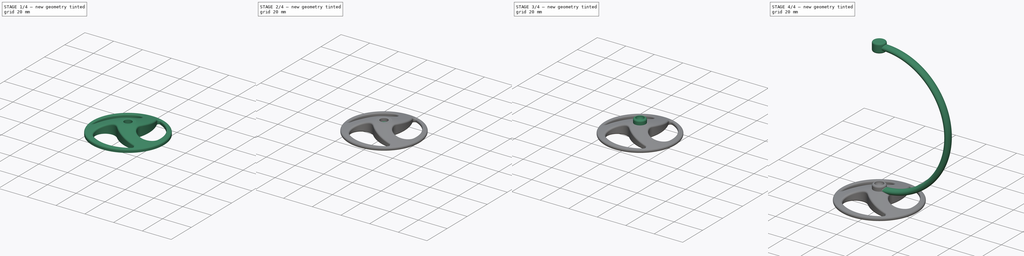
[diagram: build sequence overview — one tinted view per stage of 4, left to right]
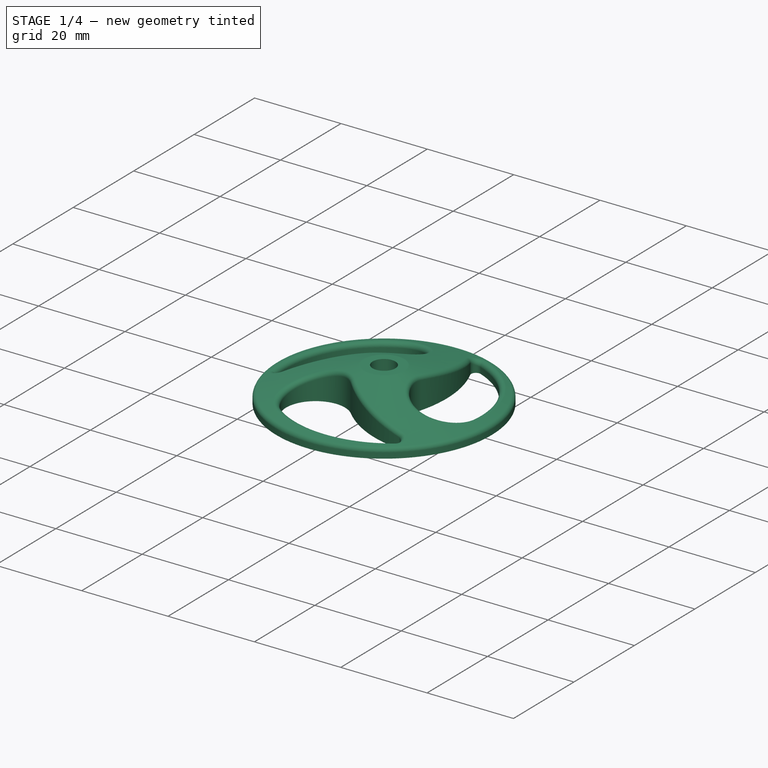
[diagram: stage 1 of 4 — iso view after this stage's code; geometry added in this stage tinted green]
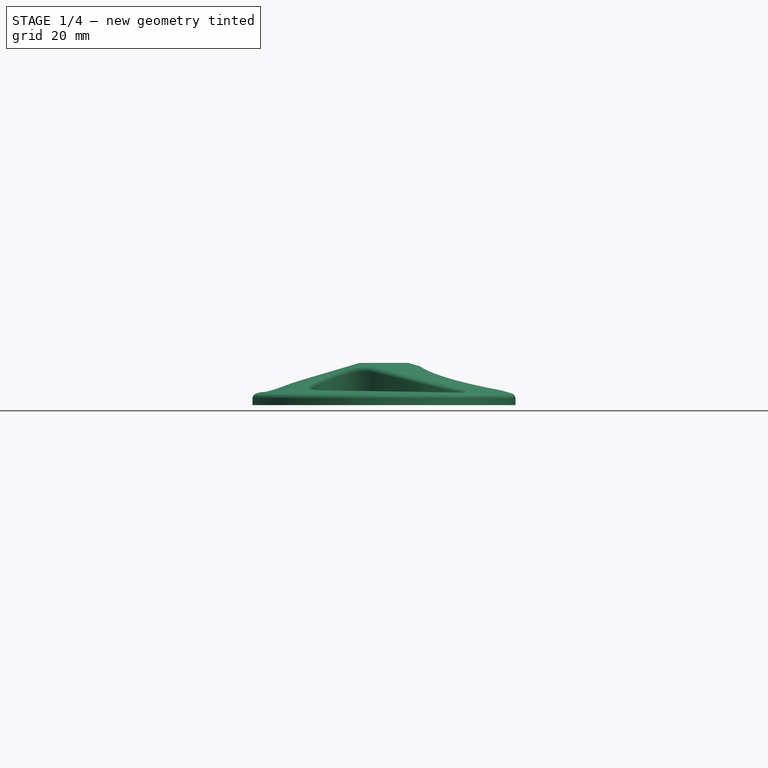
[diagram: stage 1 of 4 — front view after this stage's code; geometry added in this stage tinted green]
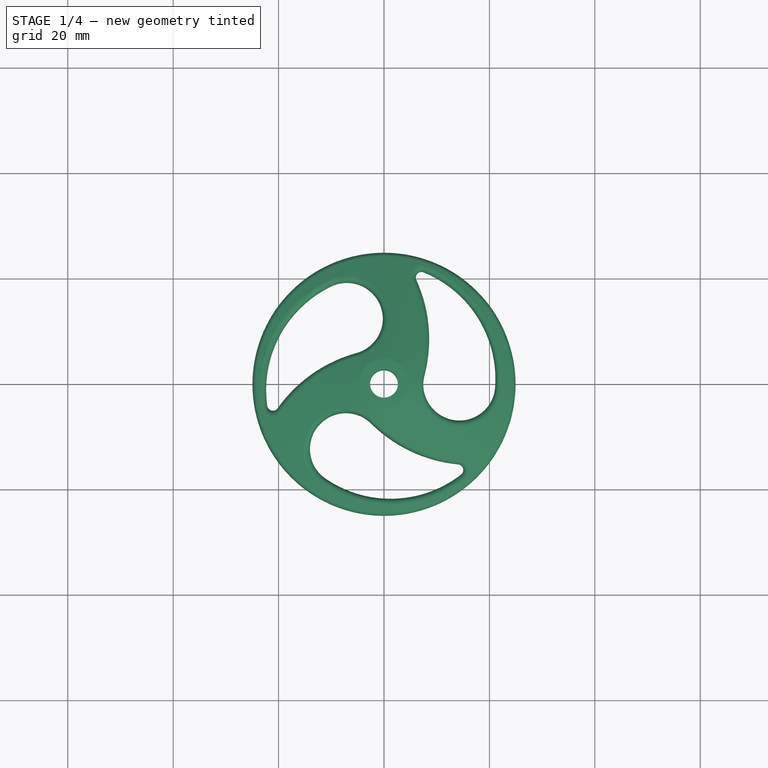
[diagram: stage 1 of 4 — top view after this stage's code; geometry added in this stage tinted green]
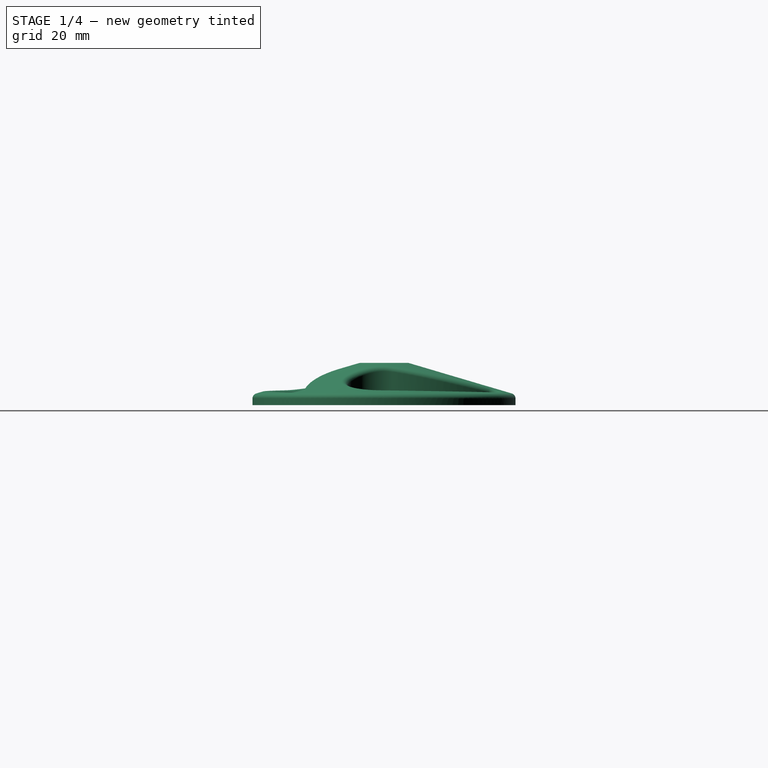
[diagram: stage 1 of 4 — right view after this stage's code; geometry added in this stage tinted green]
FCSTD DOCUMENT  (FreeCAD 0.18R4 (GitTag))
Label: stand-elegant
License: All rights reserved
LicenseURL: http://en.wikipedia.org/wiki/All_rights_reserved
objects: Sketcher::SketchObject×7, PartDesign::Fillet×6, PartDesign::Body×5, PartDesign::Revolution×4, PartDesign::AdditivePipe×1, Part::MultiFuse×1, PartDesign::Pocket×1, PartDesign::PolarPattern×1, App::MeasureDistance×1
note: 32 computed .brp shape members not serialized (recipe doc carries the construction recipe); baked Part::Feature solids carry a one-line shape summary decoded from their .brp

FEATURE [PartDesign::Body] Body  label="top socket"
  Group = -> [Sketch,Revolution,Fillet001,Fillet002]
  Origin = -> Origin
  Placement = pos=(0,0,84.5) rot=(0,1,0;3.14159rad)
  Tip = -> Fillet002
FEATURE [Sketcher::SketchObject] Sketch004
  MapMode = 5
  Placement = pos=(0,0,0) rot=(1,0,0;1.5708rad)
  Support = -> [XZ_Plane003]
  sketch-geometry (5):
    g0: LineSegment StartX=2.65 StartY=-8 StartZ=0 EndX=2.65 EndY=0 EndZ=0
    g1: LineSegment StartX=2.65 StartY=-8 StartZ=0 EndX=24.95 EndY=-8 EndZ=0
    g2: LineSegment StartX=24.95 StartY=-8 StartZ=0 EndX=24.95 EndY=-6 EndZ=0
    g3: LineSegment StartX=24.95 StartY=-6 StartZ=0 EndX=4.65 EndY=0 EndZ=0
    g4: LineSegment StartX=2.65 StartY=0 StartZ=0 EndX=4.65 EndY=0 EndZ=0
  constraints (15):
    c: Vertical(g0)
    c: Coincident(g1,g2)
    c: Coincident(g2,g3)
    c: PointOnObject(g0,g-1)
    c: Horizontal(g1)
    c: Vertical(g2)
    c: DistanceY(g2,g2) = 2
    c: Coincident(g3,g4)
    c: Coincident(g0,g4)
    c: Horizontal(g4)
    c: DistanceX(g4,g4) = 2
    c: DistanceX(g1,g1) = 22.3
    c: DistanceY(g0,g0) = 8
    c: Coincident(g0,g1)
    c: DistanceX(g-1,g0) = 2.65
FEATURE [PartDesign::Revolution] Revolution002
  Angle = 360
  Axis = (0,-2e-16,1)
  Base = (0,0,0)
  Placement = pos=(0,0,0) rot=(1,0,0;1.5708rad)
  Profile = -> Sketch004
  ReferenceAxis = -> Sketch004 [V_Axis]
  Reversed = true
FEATURE [PartDesign::Pocket] Pocket
  BaseFeature = -> Revolution002
  Length = 5
  Length2 = 100
  Placement = pos=(0,0,0) rot=(1,0,0;1.5708rad)
  Profile = -> Sketch005
  Type = 1
FEATURE [PartDesign::PolarPattern] PolarPattern
  Angle = 360
  Axis = -> Sketch005 [N_Axis]
  BaseFeature = -> Pocket
  Occurrences = 3
  Originals = -> [Pocket]
  Placement = pos=(0,0,0) rot=(1,0,0;1.5708rad)
FEATURE [PartDesign::Fillet] Fillet004
  Base = -> PolarPattern [Face17]
  BaseFeature = -> PolarPattern
  Placement = pos=(0,0,0) rot=(1,0,0;1.5708rad)
  Radius = 1
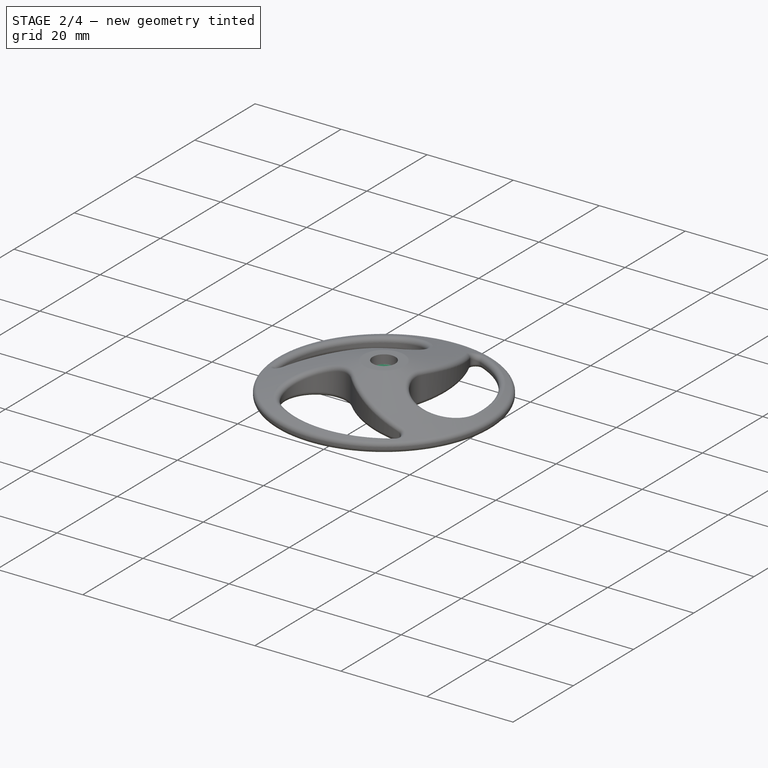
[diagram: stage 2 of 4 — iso view after this stage's code; geometry added in this stage tinted green]
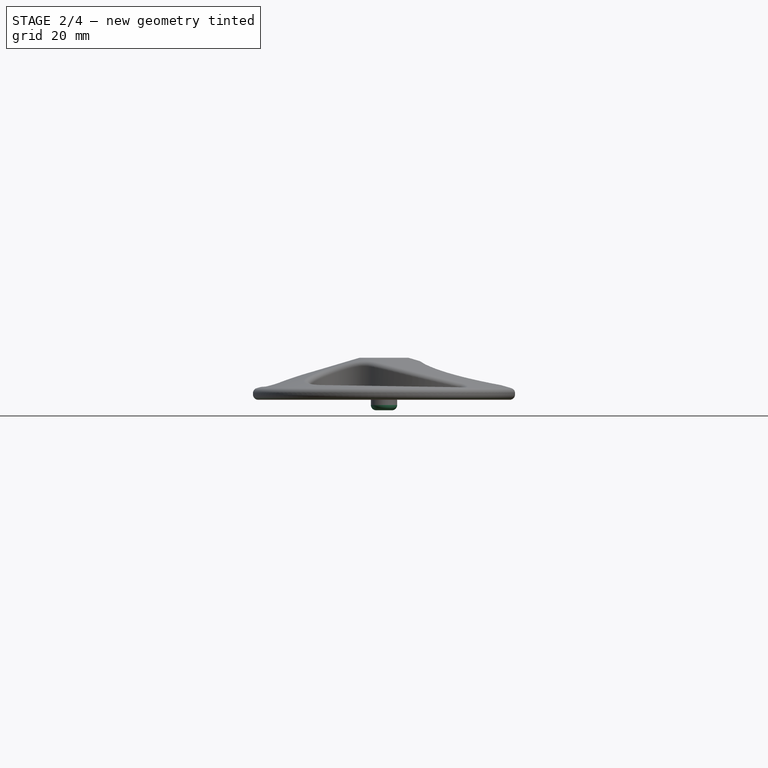
[diagram: stage 2 of 4 — front view after this stage's code; geometry added in this stage tinted green]
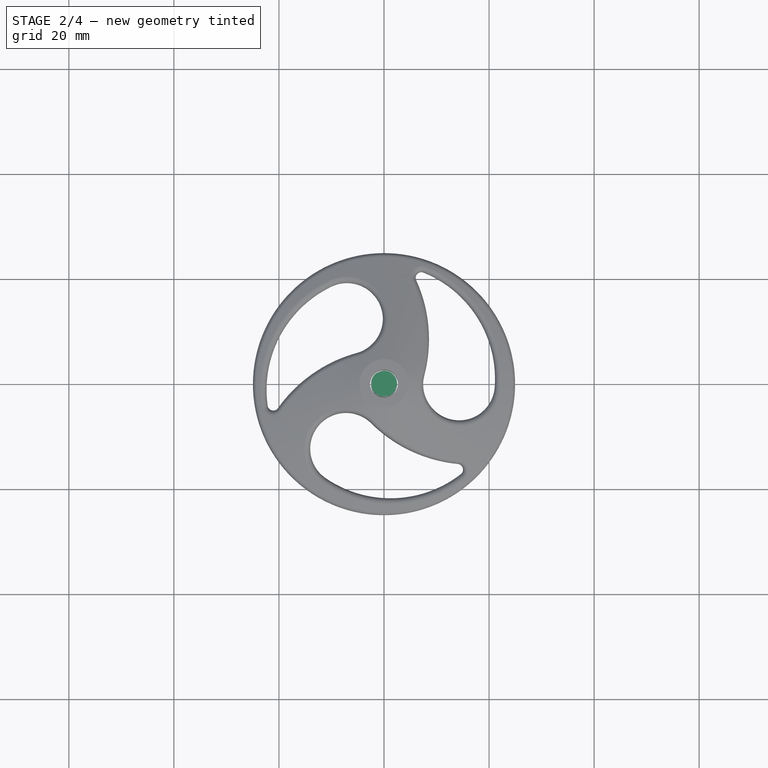
[diagram: stage 2 of 4 — top view after this stage's code; geometry added in this stage tinted green]
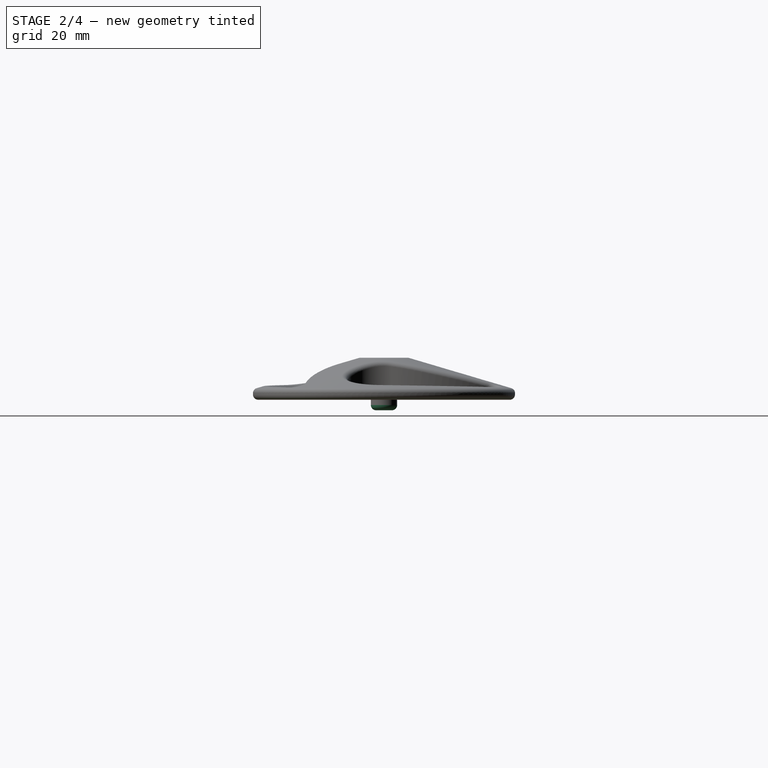
[diagram: stage 2 of 4 — right view after this stage's code; geometry added in this stage tinted green]
FEATURE [Sketcher::SketchObject] Sketch005
  MapMode = 5
  Support = -> [XY_Plane003]
  sketch-geometry (4):
    g0: ArcOfCircle CenterX=-0.556269 CenterY=-1.092 CenterZ=0 NormalX=0 NormalY=0 NormalZ=1 AngleXU=0 Radius=21.8068 StartAngle=2.01871 EndAngle=3.27962
    g1: ArcOfCircle CenterX=1.87573 CenterY=-20.3126 CenterZ=0 NormalX=0 NormalY=0 NormalZ=1 AngleXU=0 Radius=27.0923 StartAngle=1.83692 EndAngle=2.5219
    g2: ArcOfCircle CenterX=-7.04445 CenterY=12.4113 CenterZ=0 NormalX=0 NormalY=0 NormalZ=1 AngleXU=0 Radius=6.8256 StartAngle=4.97851 EndAngle=8.3019
    g3: ArcOfCircle CenterX=-21.0707 CenterY=-3.94164 CenterZ=0 NormalX=0 NormalY=0 NormalZ=1 AngleXU=0 Radius=1.09539 StartAngle=3.27962 EndAngle=5.66349
  constraints (4):
    c: Tangent(g1,g2) = 1.5708
    c: Tangent(g0,g2) = -1.5708
    c: Tangent(g3,g1) = 1.5708
    c: Tangent(g3,g0) = -1.5708
FEATURE [Sketcher::SketchObject] Sketch006  label="pin sketch"
  MapMode = 5
  Placement = pos=(0,0,0) rot=(1,0,0;1.5708rad)
  Support = -> [XZ_Plane004]
  sketch-geometry (4):
    g0: LineSegment StartX=0 StartY=-2 StartZ=0 EndX=2.5 EndY=-2 EndZ=0
    g1: LineSegment StartX=2.5 StartY=-2 StartZ=0 EndX=2.5 EndY=-10 EndZ=0
    g2: LineSegment StartX=2.5 StartY=-10 StartZ=0 EndX=0 EndY=-10 EndZ=0
    g3: LineSegment StartX=0 StartY=-10 StartZ=0 EndX=0 EndY=-2 EndZ=0
  constraints (12):
    c: Coincident(g0,g1)
    c: Coincident(g1,g2)
    c: Coincident(g2,g3)
    c: Coincident(g3,g0)
    c: Horizontal(g0)
    c: Horizontal(g2)
    c: Vertical(g1)
    c: Vertical(g3)
    c: DistanceX(g0,g0) = 2.5
    c: DistanceY(g1,g1) = 8
    c: DistanceY(g0,g-1) = 2
    c: PointOnObject(g2,g-2)
FEATURE [PartDesign::Revolution] Revolution003
  Angle = 360
  Axis = (0,2e-16,1)
  Base = (0,0,0)
  Placement = pos=(0,0,0) rot=(1,0,0;1.5708rad)
  Profile = -> Sketch006
  ReferenceAxis = -> Sketch006 [V_Axis]
  Reversed = true
FEATURE [PartDesign::Fillet] Fillet003
  Base = -> Revolution003 [Face3]
  BaseFeature = -> Revolution003
  Placement = pos=(0,0,0) rot=(1,0,0;1.5708rad)
  Radius = 1
FEATURE [PartDesign::Fillet] Fillet005
  Base = -> Fillet004 [Face5]
  BaseFeature = -> Fillet004
  Placement = pos=(0,0,0) rot=(1,0,0;1.5708rad)
  Radius = 1
FEATURE [PartDesign::Body] Body003  label="base plate"
  Group = -> [Sketch004,Revolution002,Sketch005,Pocket,PolarPattern,Fillet004,Fillet005]
  Origin = -> Origin003
  Placement = pos=(0,0,-2) rot=(0,0,1;0rad)
  Tip = -> Fillet005
FEATURE [App::MeasureDistance] Distance  label="Distance: 84.50 mm"
  Distance = 84.5
  P1 = (3,-1.00732e-05,84.5)
  P2 = (3,0,0)
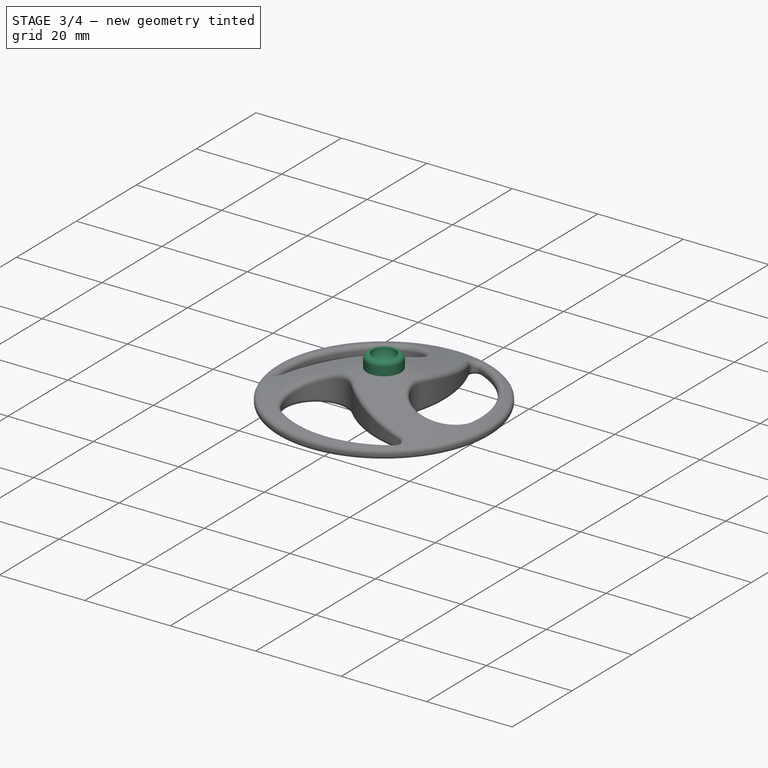
[diagram: stage 3 of 4 — iso view after this stage's code; geometry added in this stage tinted green]
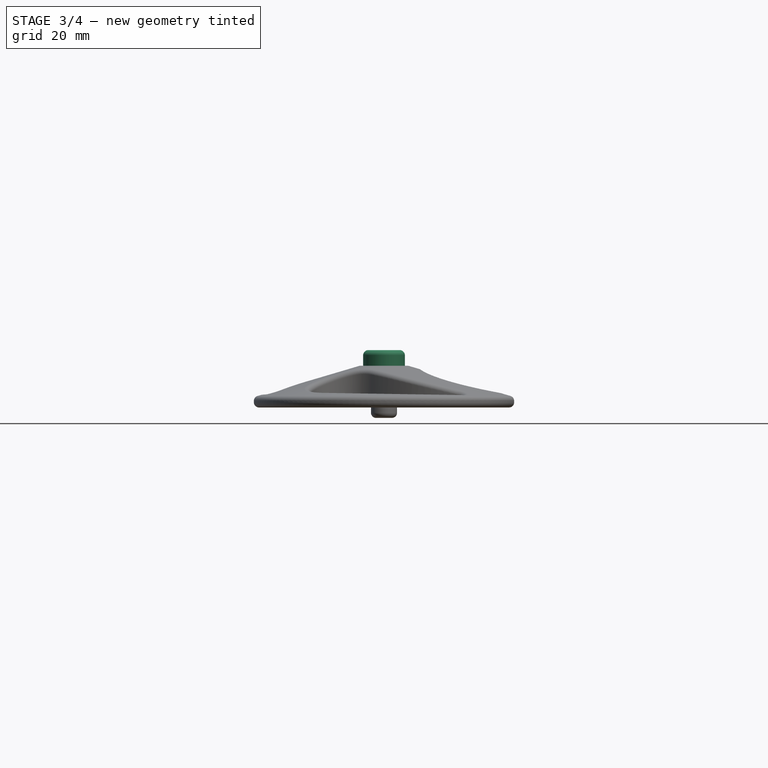
[diagram: stage 3 of 4 — front view after this stage's code; geometry added in this stage tinted green]
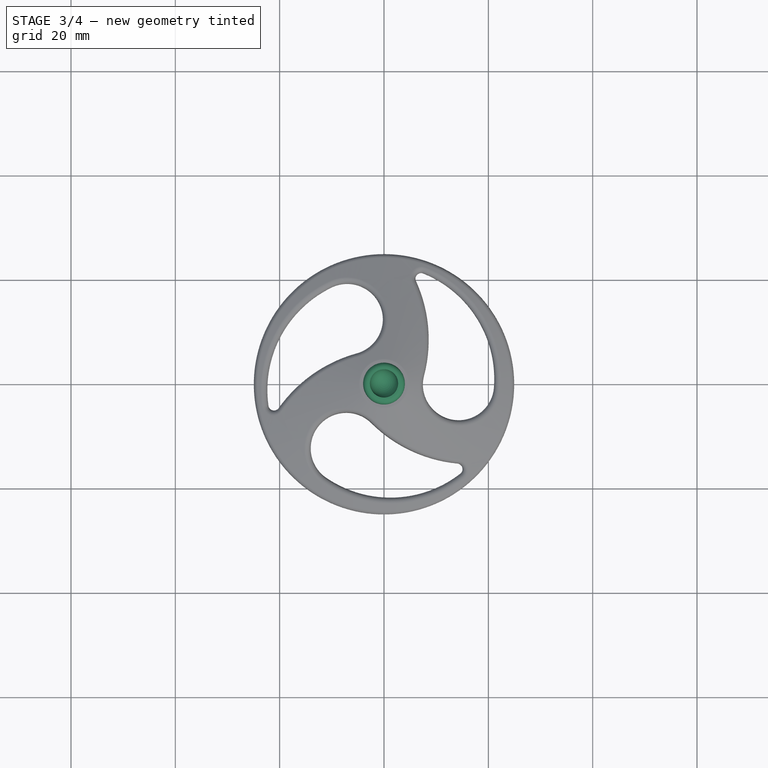
[diagram: stage 3 of 4 — top view after this stage's code; geometry added in this stage tinted green]
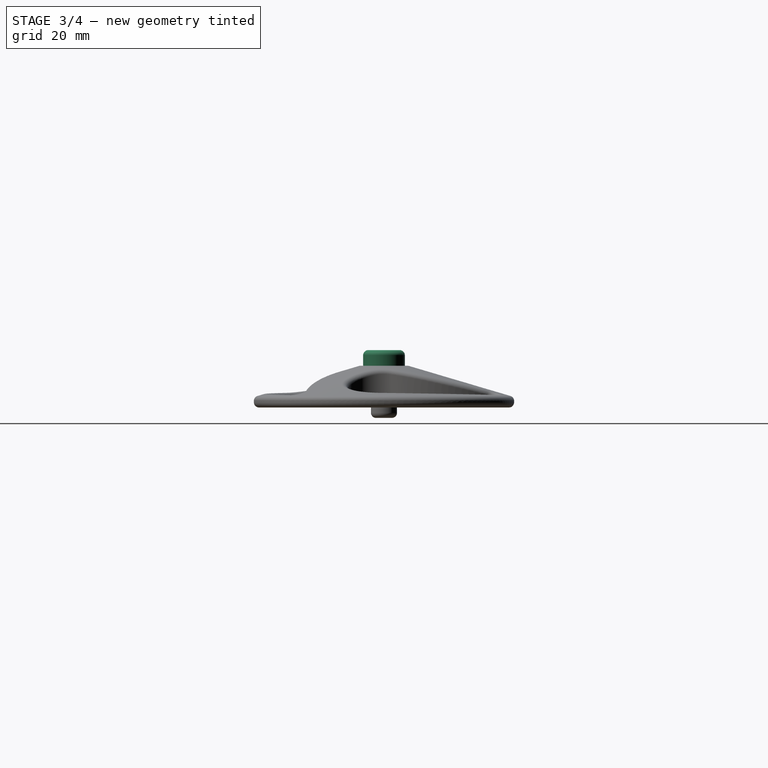
[diagram: stage 3 of 4 — right view after this stage's code; geometry added in this stage tinted green]
FEATURE [Sketcher::SketchObject] Sketch
  MapMode = 5
  Placement = pos=(0,0,0) rot=(1,0,0;1.5708rad)
  Support = -> [XZ_Plane]
  sketch-geometry (6):
    g0: LineSegment StartX=0 StartY=-3 StartZ=0 EndX=4 EndY=-3 EndZ=0
    g1: LineSegment StartX=4 StartY=-3 StartZ=0 EndX=4 EndY=3 EndZ=0
    g2: LineSegment StartX=4 StartY=3 StartZ=0 EndX=2.7 EndY=3 EndZ=0
    g3: GeomPoint X=0 Y=0 Z=0
    g4: ArcOfCircle CenterX=-0.15 CenterY=2.85 CenterZ=0 NormalX=0 NormalY=0 NormalZ=1 AngleXU=0 Radius=2.85394 StartAngle=4.76497 EndAngle=6.33577
    g5: LineSegment StartX=0 StartY=0 StartZ=0 EndX=0 EndY=-3 EndZ=0
  constraints (16):
    c: Vertical(g1)
    c: DistanceX(g0,g0) = 4
    c: DistanceY(g1,g1) = 6
    c: Horizontal(g2)
    c: Coincident(g1,g2)
    c: Coincident(g0,g1)
    c: Coincident(g2,g4)
    c: Coincident(g3,g4)
    c: Angle(g4) = 1.5708
    c: Horizontal(g0)
    c: DistanceY(g5,g5) = 3
    c: DistanceX(g2,g2) = 1.3
    c: Coincident(g5,g3)
    c: PointOnObject(g0,g-2)
    c: Coincident(g5,g0)
    c: Coincident(g3,g-1)
FEATURE [PartDesign::Revolution] Revolution
  Angle = 360
  Axis = (0,-2e-16,1)
  Base = (0,0,0)
  Placement = pos=(0,0,0) rot=(1,0,0;1.5708rad)
  Profile = -> Sketch
  ReferenceAxis = -> Sketch [V_Axis]
  Reversed = true
FEATURE [PartDesign::Body] Body001  label="bottom socket"
  Group = -> [Sketch001,Revolution001,Fillet]
  Origin = -> Origin001
  Placement = pos=(0,0,-2) rot=(0,0,1;0rad)
  Tip = -> Fillet
FEATURE [PartDesign::Fillet] Fillet001
  Base = -> Revolution [Edge2]
  BaseFeature = -> Revolution
  Placement = pos=(0,0,0) rot=(1,0,0;1.5708rad)
  Radius = 1
FEATURE [PartDesign::Fillet] Fillet002
  Base = -> Fillet001 [Edge3]
  BaseFeature = -> Fillet001
  Placement = pos=(0,0,0) rot=(1,0,0;1.5708rad)
  Radius = 1
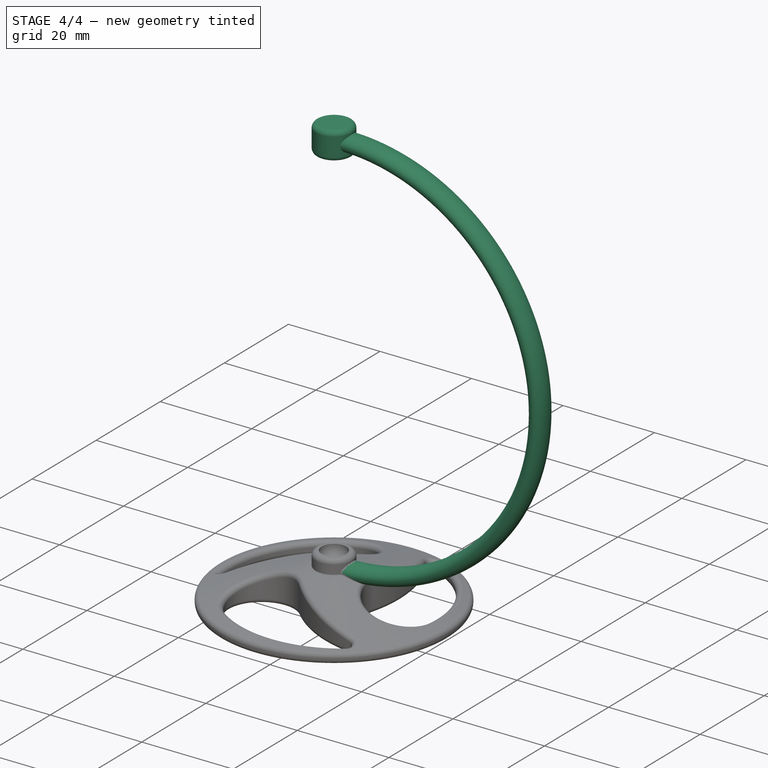
[diagram: stage 4 of 4 — iso view after this stage's code; geometry added in this stage tinted green]
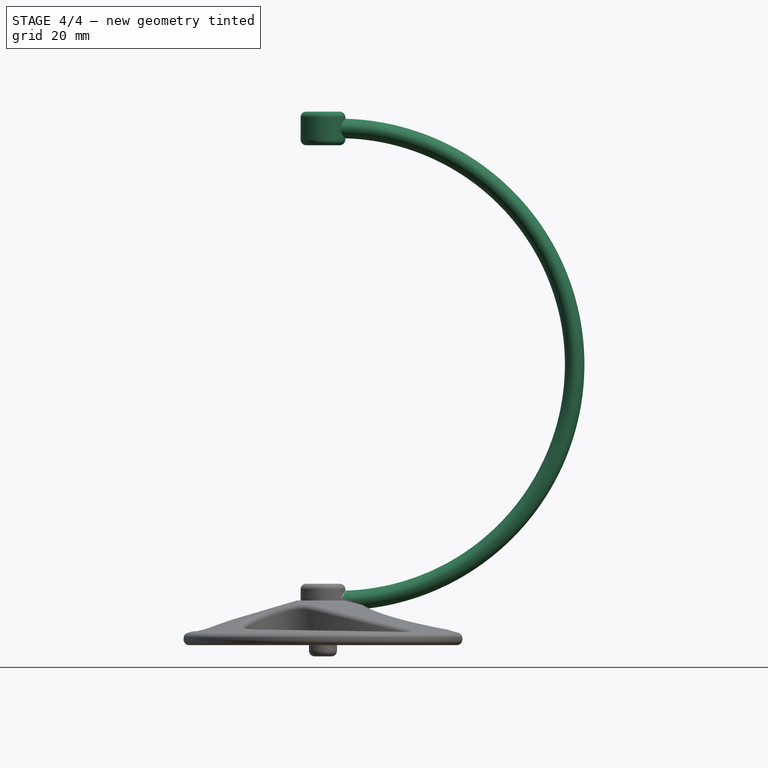
[diagram: stage 4 of 4 — front view after this stage's code; geometry added in this stage tinted green]
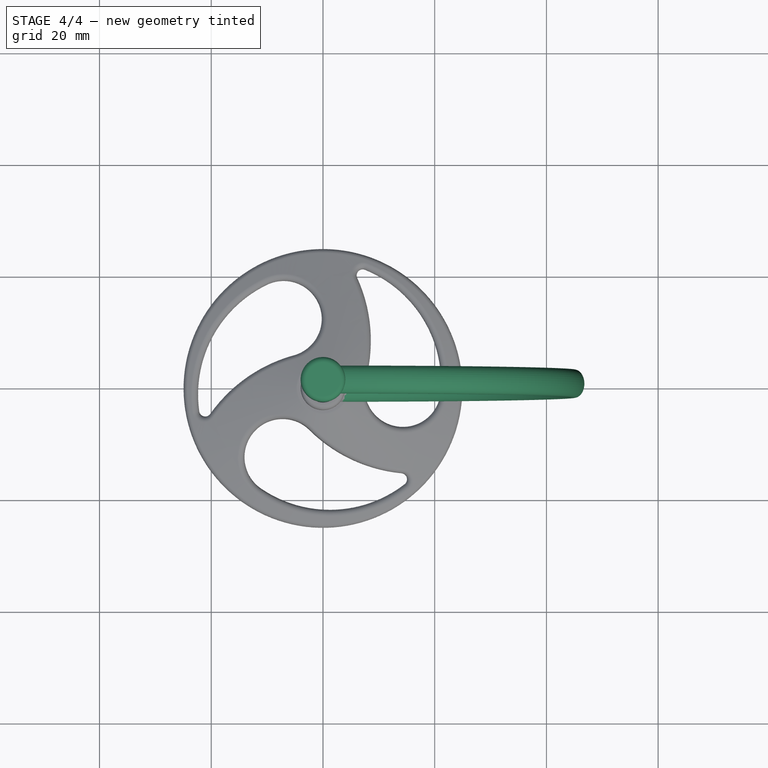
[diagram: stage 4 of 4 — top view after this stage's code; geometry added in this stage tinted green]
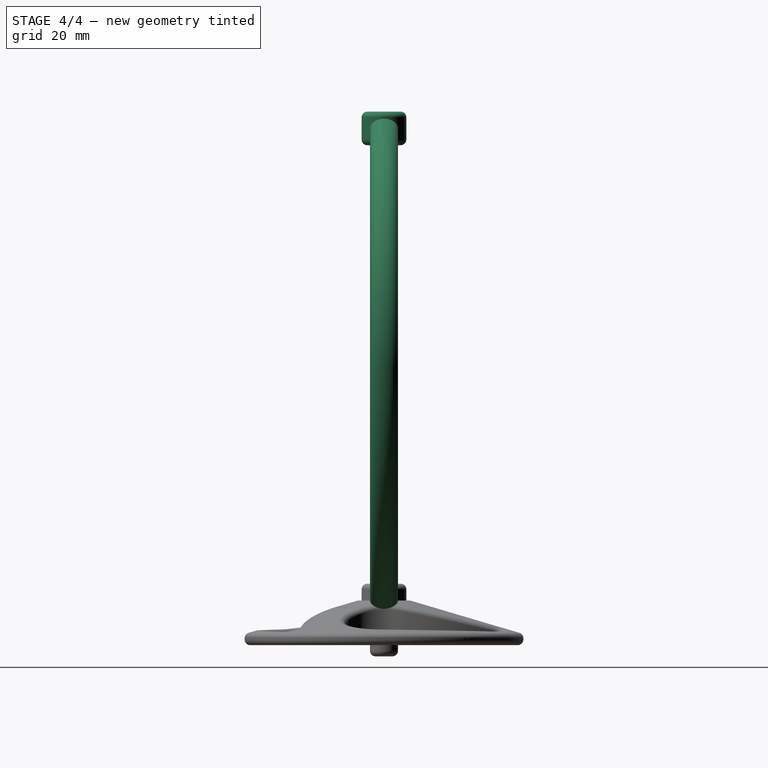
[diagram: stage 4 of 4 — right view after this stage's code; geometry added in this stage tinted green]
FEATURE [Sketcher::SketchObject] Sketch001
  MapMode = 5
  Placement = pos=(0,0,0) rot=(1,0,0;1.5708rad)
  Support = -> [XZ_Plane001]
  sketch-geometry (6):
    g0: LineSegment StartX=0 StartY=0 StartZ=0 EndX=4 EndY=0 EndZ=0
    g1: LineSegment StartX=4 StartY=0 StartZ=0 EndX=4 EndY=5 EndZ=0
    g2: LineSegment StartX=4 StartY=5 StartZ=0 EndX=2.7 EndY=5 EndZ=0
    g3: GeomPoint X=2.3664e-12 Y=2 Z=0
    g4: ArcOfCircle CenterX=-0.15 CenterY=4.85 CenterZ=0 NormalX=0 NormalY=0 NormalZ=1 AngleXU=0 Radius=2.85394 StartAngle=4.76497 EndAngle=6.33577
    g5: LineSegment StartX=2.3664e-12 StartY=2 StartZ=0 EndX=0 EndY=0 EndZ=0
  constraints (16):
    c: Vertical(g1)
    c: DistanceX(g0,g0) = 4
    c: DistanceY(g1,g1) = 5
    c: Horizontal(g2)
    c: Coincident(g1,g2)
    c: Coincident(g0,g1)
    c: DistanceX(g3) = 0
    c: Coincident(g0,g-1)
    c: Coincident(g2,g4)
    c: Coincident(g3,g4)
    c: Angle(g4) = 1.5708
    c: Horizontal(g0)
    c: Coincident(g0,g5)
    c: Coincident(g3,g5)
    c: DistanceY(g5,g5) = 2
    c: DistanceX(g2,g2) = 1.3
FEATURE [PartDesign::Revolution] Revolution001
  Angle = 360
  Axis = (0,-2e-16,1)
  Base = (0,0,0)
  Placement = pos=(0,0,0) rot=(1,0,0;1.5708rad)
  Profile = -> Sketch001
  ReferenceAxis = -> Sketch001 [V_Axis]
  Reversed = true
FEATURE [Sketcher::SketchObject] Sketch002  label="path"
  MapMode = 5
  Placement = pos=(0,0,0) rot=(1,0,0;1.5708rad)
  Support = -> [XZ_Plane002]
  sketch-geometry (1):
    g0: ArcOfCircle CenterX=-0.202045 CenterY=42.25 CenterZ=0 NormalX=0 NormalY=0 NormalZ=1 AngleXU=0 Radius=42.2505 StartAngle=4.71717 EndAngle=7.8492
  constraints (3):
    c: Coincident(g0,g-1)
    c: PointOnObject(g0,g-2)
    c: DistanceY(g0,g0) = 84.5
FEATURE [Sketcher::SketchObject] Sketch003  label="profile"
  MapMode = 5
  Placement = pos=(0,0,0) rot=(0.57735,0.57735,0.57735;2.0944rad)
  Support = -> [YZ_Plane002]
  sketch-geometry (5):
    g0: Ellipse CenterX=0 CenterY=0 CenterZ=0 NormalX=0 NormalY=0 NormalZ=1 MajorRadius=2.5 MinorRadius=1.75 AngleXU=0
    g1: LineSegment [constr] StartX=2.5 StartY=0 StartZ=0 EndX=-2.5 EndY=0 EndZ=0
    g2: LineSegment [constr] StartX=0 StartY=1.75 StartZ=0 EndX=0 EndY=-1.75 EndZ=0
    g3: GeomPoint X=1.78536 Y=0 Z=0
    g4: GeomPoint X=-1.78536 Y=0 Z=0
  constraints (5):
    c: InternalAlignment(g1-g4 -> g0) x4
    c: DistanceX(g1,g1) = 5
    c: DistanceY(g2,g2) = 3.5
    c: Coincident(g0,g-1)
    c: Horizontal(g1)
FEATURE [PartDesign::AdditivePipe] AdditivePipe
  AuxilleryCurvelinear = true
  AuxillerySpineTangent = false
  Binormal = (0,0,0)
  Mode = 0
  Placement = pos=(0,0,0) rot=(0.57735,0.57735,0.57735;2.0944rad)
  Profile = -> Sketch003
  Spine = -> Sketch002
  SpineTangent = false
  Transformation = 0
  Transition = 0
FEATURE [PartDesign::Body] Body002  label="arm"
  Group = -> [Sketch002,Sketch003,AdditivePipe]
  Origin = -> Origin002
  Placement = pos=(3,0,0) rot=(0,0,1;0rad)
  Tip = -> AdditivePipe
FEATURE [PartDesign::Fillet] Fillet
  Base = -> Revolution001 [Edge2]
  BaseFeature = -> Revolution001
  Placement = pos=(0,0,0) rot=(1,0,0;1.5708rad)
  Radius = 1
FEATURE [PartDesign::Body] Body004  label="pin"
  Group = -> [Sketch006,Revolution003,Fillet003]
  Origin = -> Origin004
  Tip = -> Fillet003
FEATURE [Part::MultiFuse] Fusion  label="arm001"
  Shapes = -> [Body002,Body004,Body,Body001]
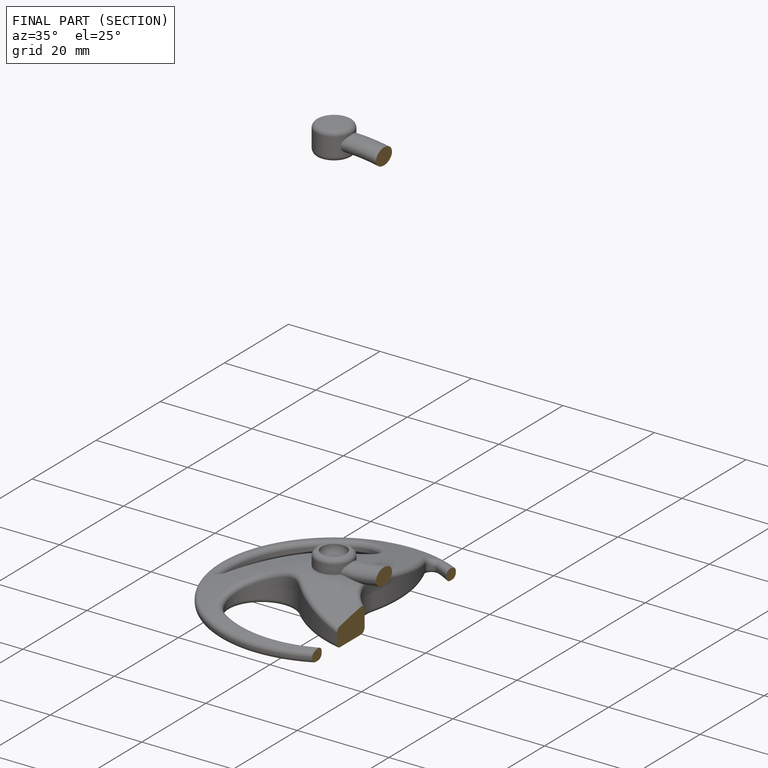
[diagram: finished part — half-section view (interior)]
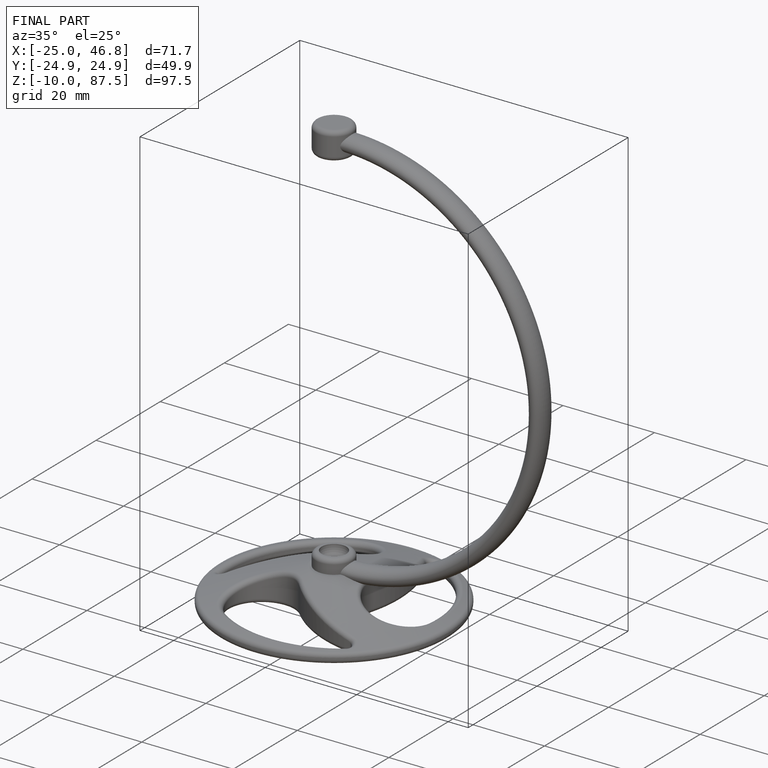
[diagram: finished part — iso view with bounding-box wireframe]
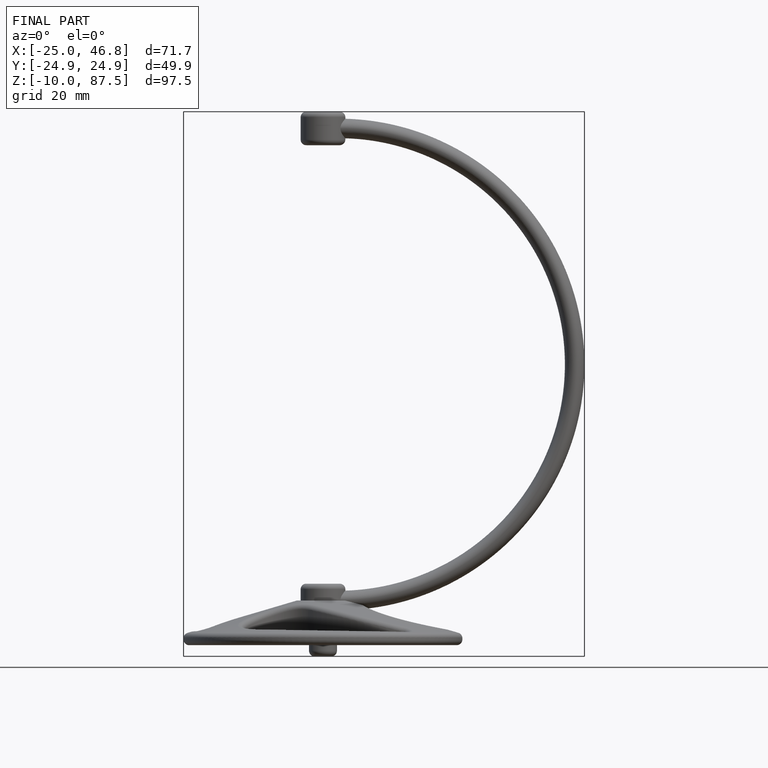
[diagram: finished part — front view with bounding-box wireframe]
